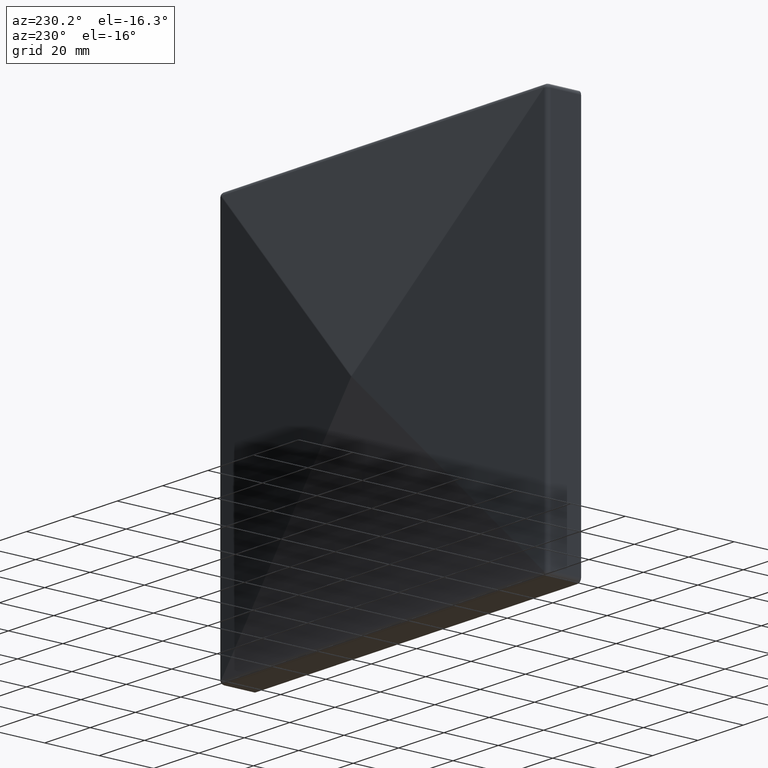
[diagram: clean part render]
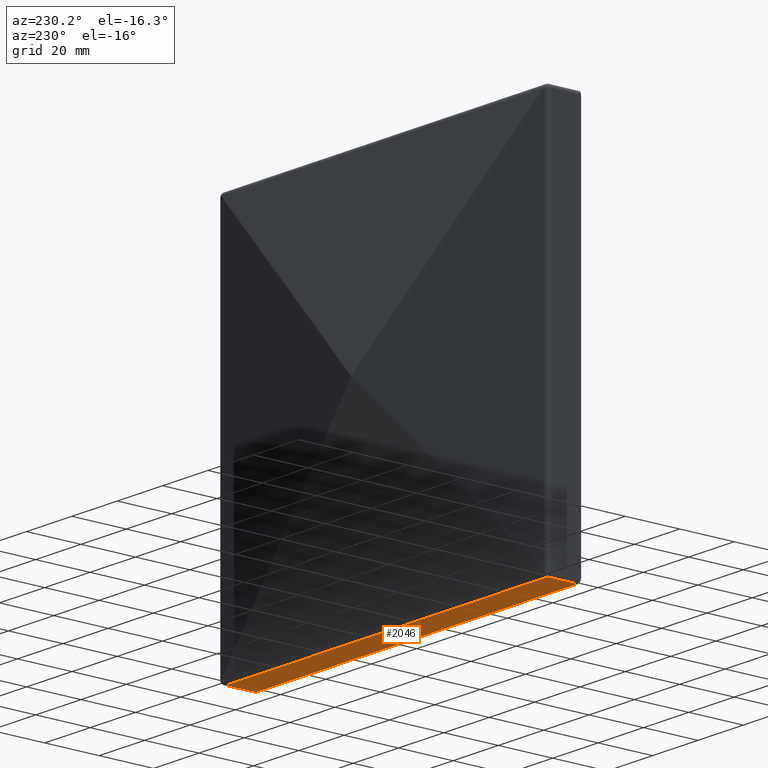
[diagram: same view with one face highlighted and labeled with its STEP entity id]
A machine part, auxiliary view. The second image highlights one B-rep face of the part: STEP entity #2046.
In plain terms, the highlighted planar face has unit normal (0, 0, 1).
Its self-contained STEP definition (entity closure, byte-faithful):
#210 = DIRECTION ( 'NONE',  ( 0.0000000000000000000, -1.000000000000000000, 0.0000000000000000000 ) ) ;
#350 = PLANE ( 'NONE',  #3707 ) ;
#968 = VERTEX_POINT ( 'NONE', #6928 ) ;
#1110 = DIRECTION ( 'NONE',  ( 1.000000000000000000, 0.0000000000000000000, -0.0000000000000000000 ) ) ;
#1711 = EDGE_CURVE ( 'NONE', #7097, #1719, #5499, .T. ) ;
#1719 = VERTEX_POINT ( 'NONE', #9299 ) ;
#1813 = CARTESIAN_POINT ( 'NONE',  ( -71.00000000000001400, 24.00000000000000000, -72.49999999999998600 ) ) ;
#1930 = CARTESIAN_POINT ( 'NONE',  ( -72.50000000000001400, 24.00000000000000000, -72.49999999999998600 ) ) ;
#2046 = ADVANCED_FACE ( 'NONE', ( #5878 ), #350, .F. ) ;
#2162 = CARTESIAN_POINT ( 'NONE',  ( 72.50000000000001400, 11.00000000000000000, -72.50000000000002800 ) ) ;
#2365 = LINE ( 'NONE', #2162, #10335 ) ;
#2787 = EDGE_CURVE ( 'NONE', #1719, #5415, #9313, .T. ) ;
#3074 = CARTESIAN_POINT ( 'NONE',  ( 71.00000000000001400, 11.00000000000000000, -72.50000000000002800 ) ) ;
#3118 = EDGE_CURVE ( 'NONE', #5415, #968, #9693, .T. ) ;
#3317 = VECTOR ( 'NONE', #210, 1000.000000000000000 ) ;
#3379 = CARTESIAN_POINT ( 'NONE',  ( -72.50000000000001400, 0.0000000000000000000, -72.49999999999998600 ) ) ;
#3466 = ORIENTED_EDGE ( 'NONE', *, *, #1711, .T. ) ;
#3540 = DIRECTION ( 'NONE',  ( 0.0000000000000000000, 0.0000000000000000000, 1.000000000000000000 ) ) ;
#3707 = AXIS2_PLACEMENT_3D ( 'NONE', #1930, #3540, #1110 ) ;
#4356 = CARTESIAN_POINT ( 'NONE',  ( 71.00000000000001400, 24.00000000000000000, -72.49999999999998600 ) ) ;
#4840 = CARTESIAN_POINT ( 'NONE',  ( -71.00000000000001400, 0.0000000000000000000, -72.49999999999998600 ) ) ;
#4894 = ORIENTED_EDGE ( 'NONE', *, *, #2787, .T. ) ;
#5118 = ORIENTED_EDGE ( 'NONE', *, *, #10077, .F. ) ;
#5415 = VERTEX_POINT ( 'NONE', #4840 ) ;
#5499 = LINE ( 'NONE', #4356, #3317 ) ;
#5878 = FACE_OUTER_BOUND ( 'NONE', #9905, .T. ) ;
#6101 = VECTOR ( 'NONE', #7420, 1000.000000000000000 ) ;
#6928 = CARTESIAN_POINT ( 'NONE',  ( -71.00000000000001400, 11.00000000000000000, -72.50000000000000000 ) ) ;
#7097 = VERTEX_POINT ( 'NONE', #3074 ) ;
#7252 = VECTOR ( 'NONE', #9292, 1000.000000000000000 ) ;
#7420 = DIRECTION ( 'NONE',  ( -1.000000000000000000, -0.0000000000000000000, -0.0000000000000000000 ) ) ;
#8463 = ORIENTED_EDGE ( 'NONE', *, *, #3118, .T. ) ;
#8789 = DIRECTION ( 'NONE',  ( -1.000000000000000000, -0.0000000000000000000, 2.220446049250313100E-016 ) ) ;
#9292 = DIRECTION ( 'NONE',  ( -0.0000000000000000000, 1.000000000000000000, -0.0000000000000000000 ) ) ;
#9299 = CARTESIAN_POINT ( 'NONE',  ( 71.00000000000001400, 0.0000000000000000000, -72.49999999999998600 ) ) ;
#9313 = LINE ( 'NONE', #3379, #6101 ) ;
#9693 = LINE ( 'NONE', #1813, #7252 ) ;
#9905 = EDGE_LOOP ( 'NONE', ( #5118, #3466, #4894, #8463 ) ) ;
#10077 = EDGE_CURVE ( 'NONE', #7097, #968, #2365, .T. ) ;
#10335 = VECTOR ( 'NONE', #8789, 1000.000000000000000 ) ;